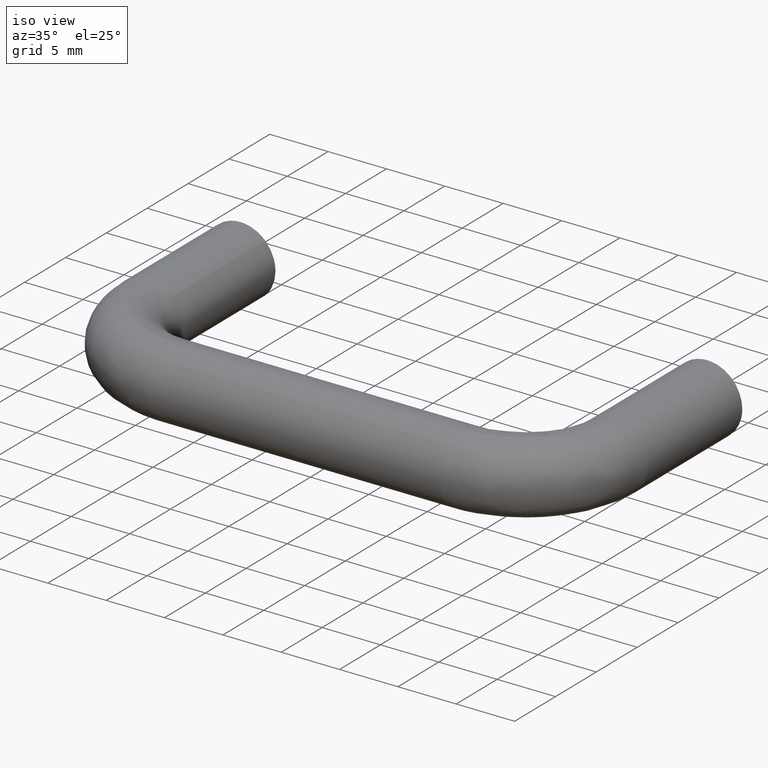
[diagram: clean part render]
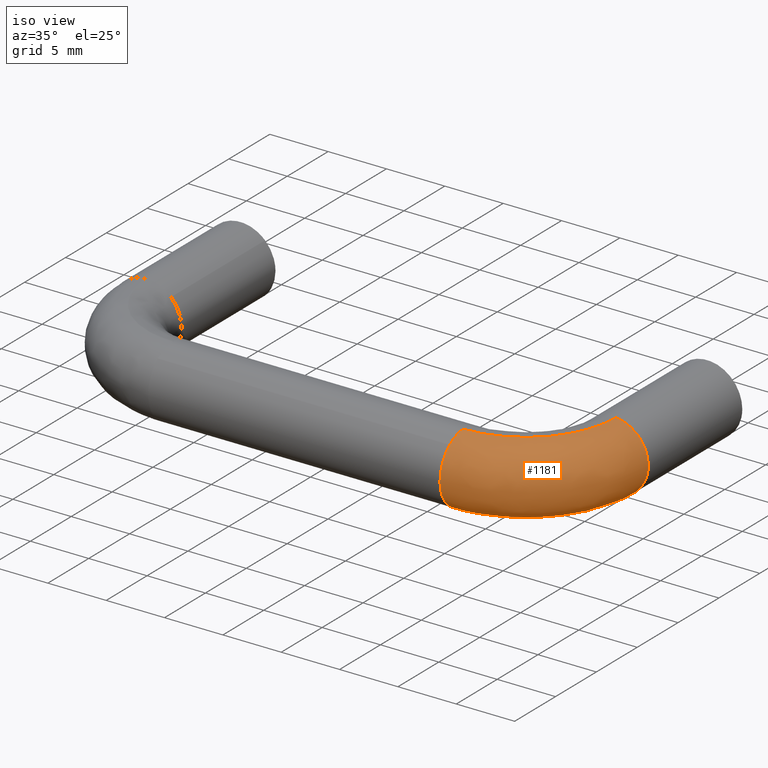
[diagram: same view with one face highlighted and labeled with its STEP entity id]
A machine part, iso view. The second image highlights one B-rep face of the part: STEP entity #1181.
In plain terms, the highlighted face is a freeform B-spline surface patch.
Its self-contained STEP definition (entity closure, byte-faithful):
#426=CARTESIAN_POINT('',(39.962301879997071,-11.500000000179689,-2.999763132607013));
#427=VERTEX_POINT('',#426);
#428=CARTESIAN_POINT('',(41.867541848628008,-11.500000000000011,-2.347826110174283));
#429=VERTEX_POINT('',#428);
#430=CARTESIAN_POINT('',(39.962301879997071,-11.500000000179694,-2.999763132607013));
#431=CARTESIAN_POINT('',(39.981150195671418,-11.500000000000002,-3.000000000000000));
#432=CARTESIAN_POINT('',(40.0,-11.500000000000000,-3.0));
#433=CARTESIAN_POINT('',(41.047645422730959,-11.499999999999995,-3.000000000000000));
#434=CARTESIAN_POINT('',(41.867541848628008,-11.500000000000011,-2.347826110174283));
#442=(BOUNDED_CURVE()B_SPLINE_CURVE(2,(#430,#431,#432,#433,#434),.UNSPECIFIED.,.F.,.U.)B_SPLINE_CURVE_WITH_KNOTS((3,2,3),(0.247784295880353,0.250000000000000,0.357863744491165),.UNSPECIFIED.)CURVE()GEOMETRIC_REPRESENTATION_ITEM()RATIONAL_B_SPLINE_CURVE((0.994854295548782,0.997404141153833,1.0,0.873629762730844,0.856305661334393))REPRESENTATION_ITEM(''));
#443=EDGE_CURVE('',#427,#429,#442,.T.);
#540=CARTESIAN_POINT('',(43.0,-11.500000000000000,0.0));
#541=VERTEX_POINT('',#540);
#542=CARTESIAN_POINT('',(41.867541848628008,-11.500000000000011,-2.347826110174282));
#543=CARTESIAN_POINT('',(42.999999999999986,-11.500000000000000,-1.447029845775203));
#544=CARTESIAN_POINT('',(43.0,-11.500000000000000,0.0));
#552=(BOUNDED_CURVE()B_SPLINE_CURVE(2,(#542,#543,#544),.UNSPECIFIED.,.F.,.U.)B_SPLINE_CURVE_WITH_KNOTS((3,3),(0.357863744491165,0.500000000000000),.UNSPECIFIED.)CURVE()GEOMETRIC_REPRESENTATION_ITEM()RATIONAL_B_SPLINE_CURVE((0.856305661334393,0.833477018455704,1.0))REPRESENTATION_ITEM(''));
#553=EDGE_CURVE('',#429,#541,#552,.T.);
#587=CARTESIAN_POINT('',(40.209199755762477,-11.500000000247621,2.992697021448866));
#588=VERTEX_POINT('',#587);
#604=CARTESIAN_POINT('',(43.0,-11.500000000000000,0.0));
#605=CARTESIAN_POINT('',(43.0,-11.500000000000000,2.797610539857916));
#606=CARTESIAN_POINT('',(40.209199755762491,-11.500000000247622,2.992697021448866));
#614=(BOUNDED_CURVE()B_SPLINE_CURVE(2,(#604,#605,#606),.UNSPECIFIED.,.F.,.U.)B_SPLINE_CURVE_WITH_KNOTS((3,3),(0.500000000000000,0.737833686416045),.UNSPECIFIED.)CURVE()GEOMETRIC_REPRESENTATION_ITEM()RATIONAL_B_SPLINE_CURVE((1.0,0.721360504173342,0.972879876135181))REPRESENTATION_ITEM(''));
#615=EDGE_CURVE('',#541,#588,#614,.T.);
#646=CARTESIAN_POINT('',(32.500000000000000,-22.0,0.0));
#647=VERTEX_POINT('',#646);
#648=CARTESIAN_POINT('',(32.500000000180812,-20.824133624744910,2.381708739103320));
#649=VERTEX_POINT('',#648);
#650=CARTESIAN_POINT('',(32.500000000000000,-22.0,0.0));
#651=CARTESIAN_POINT('',(32.499999999999993,-22.000000000000004,1.481121123841983));
#652=CARTESIAN_POINT('',(32.500000000180805,-20.824133624744913,2.381708739103320));
#660=(BOUNDED_CURVE()B_SPLINE_CURVE(2,(#650,#651,#652),.UNSPECIFIED.,.F.,.U.)B_SPLINE_CURVE_WITH_KNOTS((3,3),(0.500000000000000,0.644916377192483),.UNSPECIFIED.)CURVE()GEOMETRIC_REPRESENTATION_ITEM()RATIONAL_B_SPLINE_CURVE((1.0,0.830219903301237,0.857271138866268))REPRESENTATION_ITEM(''));
#661=EDGE_CURVE('',#647,#649,#660,.T.);
#754=CARTESIAN_POINT('',(32.500000000122377,-18.962301880125231,-2.999763132608624));
#755=VERTEX_POINT('',#754);
#769=CARTESIAN_POINT('',(32.500000000122384,-18.962301880125235,-2.999763132608624));
#770=CARTESIAN_POINT('',(32.500000000000000,-18.981150195799593,-3.000000000000000));
#771=CARTESIAN_POINT('',(32.500000000000000,-19.0,-3.0));
#772=CARTESIAN_POINT('',(32.500000000000007,-22.000000000000007,-3.0));
#773=CARTESIAN_POINT('',(32.500000000000000,-22.0,0.0));
#781=(BOUNDED_CURVE()B_SPLINE_CURVE(2,(#769,#770,#771,#772,#773),.UNSPECIFIED.,.F.,.U.)B_SPLINE_CURVE_WITH_KNOTS((3,2,3),(0.247784295895380,0.250000000000000,0.500000000000000),.UNSPECIFIED.)CURVE()GEOMETRIC_REPRESENTATION_ITEM()RATIONAL_B_SPLINE_CURVE((0.994854295583369,0.997404141171439,1.0,0.707106781186548,1.0))REPRESENTATION_ITEM(''));
#782=EDGE_CURVE('',#755,#647,#781,.T.);
#801=CARTESIAN_POINT('',(32.500000000429111,-19.209199756378428,2.992697021405809));
#802=VERTEX_POINT('',#801);
#803=CARTESIAN_POINT('',(32.500000000180798,-20.824133624744910,2.381708739103319));
#804=CARTESIAN_POINT('',(32.500000000290846,-20.108463413188804,2.929835415946906));
#805=CARTESIAN_POINT('',(32.500000000429111,-19.209199756378425,2.992697021405810));
#813=(BOUNDED_CURVE()B_SPLINE_CURVE(2,(#803,#804,#805),.UNSPECIFIED.,.F.,.U.)B_SPLINE_CURVE_WITH_KNOTS((3,3),(0.644916377192483,0.737833686345250),.UNSPECIFIED.)CURVE()GEOMETRIC_REPRESENTATION_ITEM()RATIONAL_B_SPLINE_CURVE((0.857271138866267,0.874615817684878,0.972879875985445))REPRESENTATION_ITEM(''));
#814=EDGE_CURVE('',#649,#802,#813,.T.);
#1110=CARTESIAN_POINT('',(32.500000000122377,-18.962301880125231,-2.999763132608624));
#1111=CARTESIAN_POINT('',(39.962301879990569,-18.962301880105169,-2.999763132611447));
#1112=CARTESIAN_POINT('',(39.962301879997071,-11.500000000179693,-2.999763132607013));
#1120=(BOUNDED_CURVE()B_SPLINE_CURVE(2,(#1110,#1111,#1112),.UNSPECIFIED.,.F.,.U.)B_SPLINE_CURVE_WITH_KNOTS((3,3),(-1.734750791624319,-0.265249208391641),.UNSPECIFIED.)CURVE()GEOMETRIC_REPRESENTATION_ITEM()RATIONAL_B_SPLINE_CURVE((0.889029723564363,0.628638946232211,0.889029723558707))REPRESENTATION_ITEM(''));
#1121=EDGE_CURVE('',#755,#427,#1120,.T.);
#1126=CARTESIAN_POINT('',(32.500000000429111,-19.209199756378425,2.992697021405808));
#1127=CARTESIAN_POINT('',(40.209199754231065,-19.209199753868116,2.992697021521296));
#1128=CARTESIAN_POINT('',(40.209199755762484,-11.500000000247624,2.992697021448865));
#1136=(BOUNDED_CURVE()B_SPLINE_CURVE(2,(#1126,#1127,#1128),.UNSPECIFIED.,.F.,.U.)B_SPLINE_CURVE_WITH_KNOTS((3,3),(-1.734750791542726,-0.265249208408352),.UNSPECIFIED.)CURVE()GEOMETRIC_REPRESENTATION_ITEM()RATIONAL_B_SPLINE_CURVE((0.869031711835188,0.614498216564749,0.869031711852135))REPRESENTATION_ITEM(''));
#1137=EDGE_CURVE('',#802,#588,#1136,.T.);
#1142=CARTESIAN_POINT('',(31.984031816800982,-18.902080793620776,-2.999232051303347));
#1143=CARTESIAN_POINT('',(40.495370973872497,-19.495370751391796,-2.999232051303348));
#1144=CARTESIAN_POINT('',(39.902080779263351,-10.984031610829293,-2.999232051303347));
#1145=CARTESIAN_POINT('',(31.982566801513077,-18.923097906454494,-2.999496814931227));
#1146=CARTESIAN_POINT('',(40.518072646360324,-19.518072423247926,-2.999496814931228));
#1147=CARTESIAN_POINT('',(39.923097892056290,-10.982566594956577,-2.999496814931227));
#1148=CARTESIAN_POINT('',(31.772498366016219,-21.936740185900085,-3.037461252261504));
#1149=CARTESIAN_POINT('',(43.773263811995747,-22.773263498303809,-3.037461252261505));
#1150=CARTESIAN_POINT('',(42.936740165656481,-10.772498075601542,-3.037461252261506));
#1151=CARTESIAN_POINT('',(31.769876948197695,-21.974347052211584,-0.037698119650058));
#1152=CARTESIAN_POINT('',(43.813884936745495,-22.813884621923215,-0.037698119650058));
#1153=CARTESIAN_POINT('',(42.974347031895036,-10.769876656736558,-0.037698119650058));
#1154=CARTESIAN_POINT('',(31.767401403263353,-22.009861225776731,2.795138513519092));
#1155=CARTESIAN_POINT('',(43.852245635635512,-22.852245319745823,2.795138513519092));
#1156=CARTESIAN_POINT('',(43.009861205391303,-10.767401110813994,2.795138513519093));
#1157=CARTESIAN_POINT('',(31.965429096860301,-19.168955458504740,2.994209418293159));
#1158=CARTESIAN_POINT('',(40.783636126437969,-19.783635895935955,2.994209418293158));
#1159=CARTESIAN_POINT('',(40.168955443629677,-10.965428883462510,2.994209418293159));
#1160=CARTESIAN_POINT('',(31.966925301299746,-19.147490906028146,2.995713504747315));
#1161=CARTESIAN_POINT('',(40.760451151209580,-19.760450921352721,2.995713504747313));
#1162=CARTESIAN_POINT('',(40.147490891194714,-10.966925088499227,2.995713504747314));
#1170=(BOUNDED_SURFACE()B_SPLINE_SURFACE(2,2,((#1142,#1145,#1148,#1151,#1154,#1157,#1160),(#1143,#1146,#1149,#1152,#1155,#1158,#1161),(#1144,#1147,#1150,#1153,#1156,#1159,#1162)),.UNSPECIFIED.,.F.,.F.,.U.)B_SPLINE_SURFACE_WITH_KNOTS((3,3),(3,1,2,1,3),(0.0,19.134494466490519),(0.0,0.049805071346110,5.020367819823258,9.792108058361320,9.841921046146481),.UNSPECIFIED.)GEOMETRIC_REPRESENTATION_ITEM()RATIONAL_B_SPLINE_SURFACE(((0.921720642093778,0.919031368667355,0.647951709431553,0.916342095240933,0.658687324863928,0.898204238422464,0.900678763234157),(0.604856105519621,0.603091337132001,0.425202094466791,0.601326568744382,0.432247073437895,0.589424054103102,0.591047899086341),(0.921720653778826,0.919031380318311,0.647951717645915,0.916342106857795,0.658687333214390,0.898204249809385,0.900678774652448)))REPRESENTATION_ITEM('')SURFACE());
#1171=ORIENTED_EDGE('',*,*,#615,.T.);
#1172=ORIENTED_EDGE('',*,*,#1137,.F.);
#1173=ORIENTED_EDGE('',*,*,#814,.F.);
#1174=ORIENTED_EDGE('',*,*,#661,.F.);
#1175=ORIENTED_EDGE('',*,*,#782,.F.);
#1176=ORIENTED_EDGE('',*,*,#1121,.T.);
#1177=ORIENTED_EDGE('',*,*,#443,.T.);
#1178=ORIENTED_EDGE('',*,*,#553,.T.);
#1179=EDGE_LOOP('',(#1171,#1172,#1173,#1174,#1175,#1176,#1177,#1178));
#1180=FACE_OUTER_BOUND('',#1179,.T.);
#1181=ADVANCED_FACE('',(#1180),#1170,.T.);